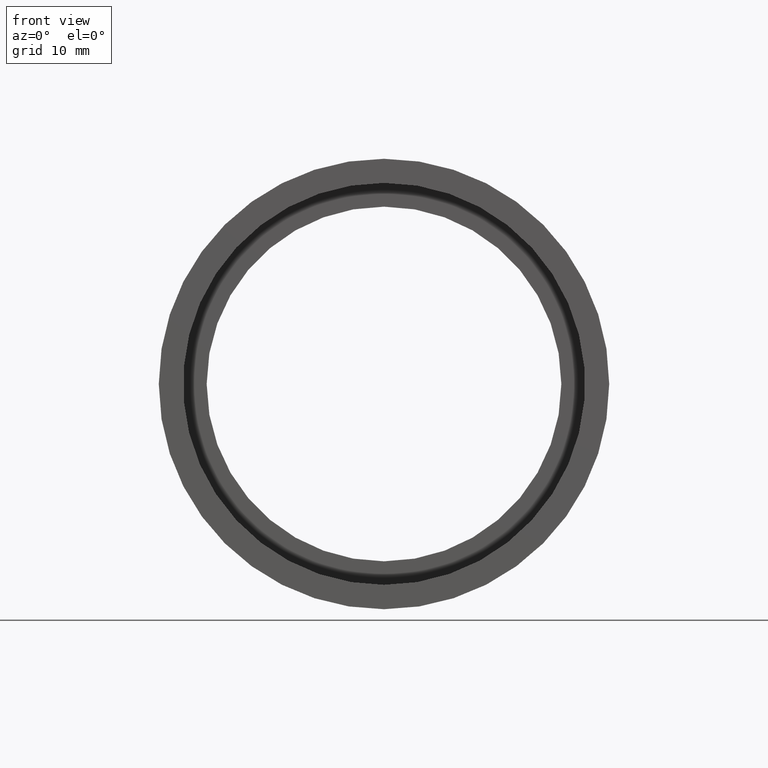
[diagram: clean part render]
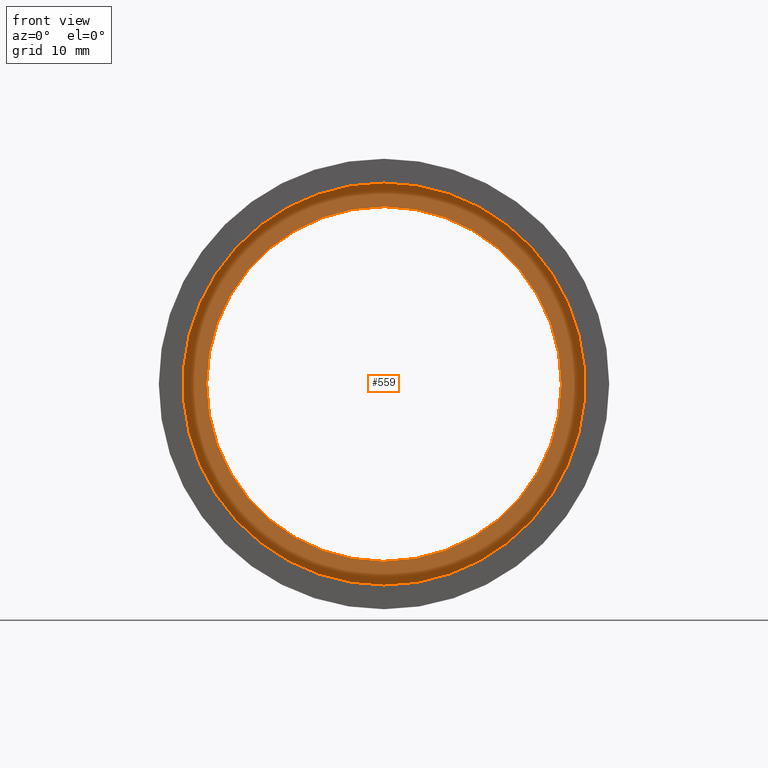
[diagram: same view with one face highlighted and labeled with its STEP entity id]
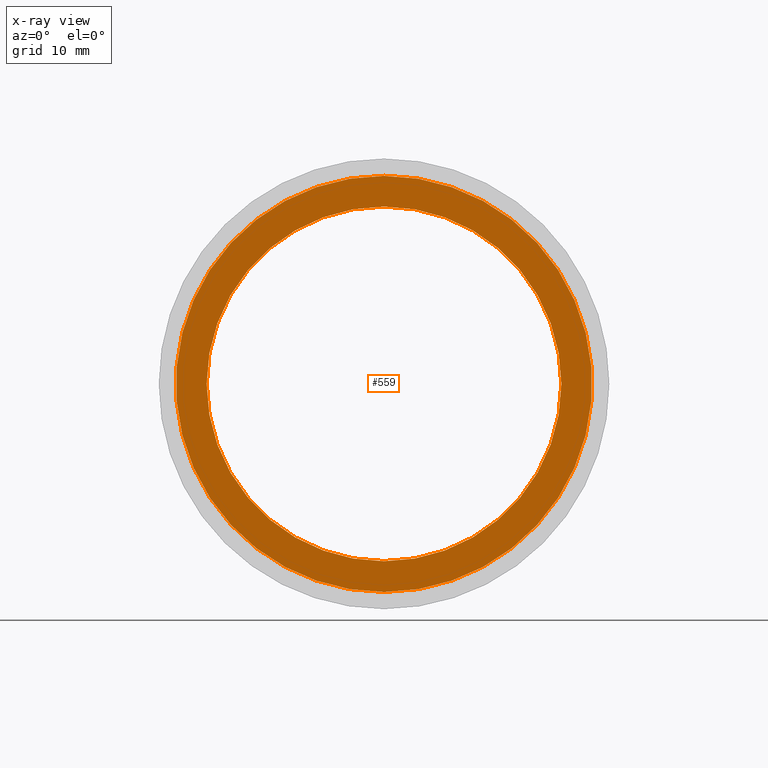
[diagram: x-ray of the same camera — body ghosted, the highlighted face saturated]
A machine part, front view. The second image highlights one B-rep face of the part: STEP entity #559.
The next image is the same camera in x-ray: the body ghosted, the highlighted face saturated — about 0% of this face is hidden behind the body in this view.
In plain terms, the highlighted planar face has unit normal (-0, 1, 0).
Its self-contained STEP definition (entity closure, byte-faithful):
#2 = ORIENTED_EDGE ( 'NONE', *, *, #201, .T. ) ;
#15 = CARTESIAN_POINT ( 'NONE',  ( 2.155378366499344400E-015, 5.499999999999976900, -17.60000000000002300 ) ) ;
#21 = CIRCLE ( 'NONE', #271, 15.00000000000001600 ) ;
#23 = DIRECTION ( 'NONE',  ( 0.0000000000000000000, 0.0000000000000000000, 1.000000000000000000 ) ) ;
#25 = EDGE_LOOP ( 'NONE', ( #272, #605 ) ) ;
#32 = DIRECTION ( 'NONE',  ( -0.0000000000000000000, 1.000000000000000000, 0.0000000000000000000 ) ) ;
#33 = DIRECTION ( 'NONE',  ( -0.0000000000000000000, 1.000000000000000000, -0.0000000000000000000 ) ) ;
#76 = EDGE_CURVE ( 'NONE', #85, #589, #493, .T. ) ;
#79 = DIRECTION ( 'NONE',  ( -0.0000000000000000000, 1.000000000000000000, -0.0000000000000000000 ) ) ;
#85 = VERTEX_POINT ( 'NONE', #15 ) ;
#89 = AXIS2_PLACEMENT_3D ( 'NONE', #173, #32, #381 ) ;
#173 = CARTESIAN_POINT ( 'NONE',  ( 17.60000000000002300, 5.499999999999983100, 0.0000000000000000000 ) ) ;
#179 = CARTESIAN_POINT ( 'NONE',  ( 0.0000000000000000000, 5.499999999999976900, 17.60000000000002300 ) ) ;
#185 = EDGE_CURVE ( 'NONE', #589, #85, #578, .T. ) ;
#191 = VERTEX_POINT ( 'NONE', #334 ) ;
#201 = EDGE_CURVE ( 'NONE', #191, #620, #551, .T. ) ;
#226 = CARTESIAN_POINT ( 'NONE',  ( 0.0000000000000000000, 5.499999999999976900, 0.0000000000000000000 ) ) ;
#265 = ORIENTED_EDGE ( 'NONE', *, *, #604, .T. ) ;
#267 = DIRECTION ( 'NONE',  ( 0.0000000000000000000, 0.0000000000000000000, 1.000000000000000000 ) ) ;
#271 = AXIS2_PLACEMENT_3D ( 'NONE', #567, #33, #391 ) ;
#272 = ORIENTED_EDGE ( 'NONE', *, *, #185, .F. ) ;
#303 = FACE_BOUND ( 'NONE', #326, .T. ) ;
#315 = DIRECTION ( 'NONE',  ( -0.0000000000000000000, 1.000000000000000000, -0.0000000000000000000 ) ) ;
#326 = EDGE_LOOP ( 'NONE', ( #2, #265 ) ) ;
#334 = CARTESIAN_POINT ( 'NONE',  ( 0.0000000000000000000, 5.499999999999976900, 15.00000000000001600 ) ) ;
#367 = CARTESIAN_POINT ( 'NONE',  ( 0.0000000000000000000, 5.499999999999976900, 0.0000000000000000000 ) ) ;
#378 = AXIS2_PLACEMENT_3D ( 'NONE', #367, #315, #597 ) ;
#381 = DIRECTION ( 'NONE',  ( 0.0000000000000000000, 0.0000000000000000000, 1.000000000000000000 ) ) ;
#384 = AXIS2_PLACEMENT_3D ( 'NONE', #226, #421, #23 ) ;
#391 = DIRECTION ( 'NONE',  ( 0.0000000000000000000, 0.0000000000000000000, 1.000000000000000000 ) ) ;
#419 = CARTESIAN_POINT ( 'NONE',  ( 1.836970198721032000E-015, 5.499999999999976900, -15.00000000000001600 ) ) ;
#421 = DIRECTION ( 'NONE',  ( -0.0000000000000000000, 1.000000000000000000, -0.0000000000000000000 ) ) ;
#472 = FACE_OUTER_BOUND ( 'NONE', #25, .T. ) ;
#493 = CIRCLE ( 'NONE', #378, 17.60000000000002300 ) ;
#505 = PLANE ( 'NONE',  #89 ) ;
#551 = CIRCLE ( 'NONE', #564, 15.00000000000001600 ) ;
#559 = ADVANCED_FACE ( 'NONE', ( #472, #303 ), #505, .F. ) ;
#564 = AXIS2_PLACEMENT_3D ( 'NONE', #611, #79, #267 ) ;
#567 = CARTESIAN_POINT ( 'NONE',  ( 0.0000000000000000000, 5.499999999999976900, 0.0000000000000000000 ) ) ;
#578 = CIRCLE ( 'NONE', #384, 17.60000000000002300 ) ;
#589 = VERTEX_POINT ( 'NONE', #179 ) ;
#597 = DIRECTION ( 'NONE',  ( 0.0000000000000000000, 0.0000000000000000000, 1.000000000000000000 ) ) ;
#604 = EDGE_CURVE ( 'NONE', #620, #191, #21, .T. ) ;
#605 = ORIENTED_EDGE ( 'NONE', *, *, #76, .F. ) ;
#611 = CARTESIAN_POINT ( 'NONE',  ( 0.0000000000000000000, 5.499999999999976900, 0.0000000000000000000 ) ) ;
#620 = VERTEX_POINT ( 'NONE', #419 ) ;